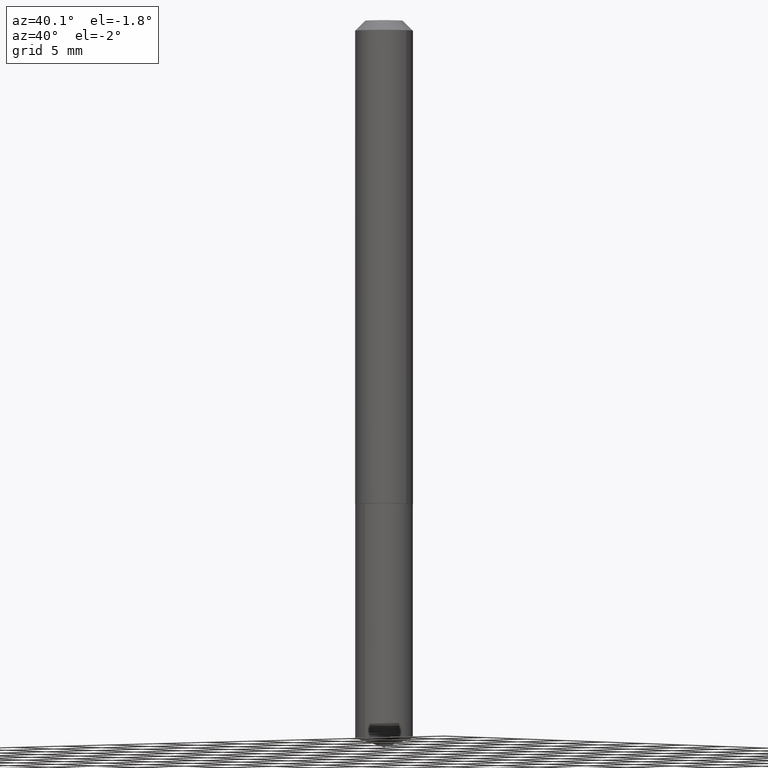
[diagram: clean part render]
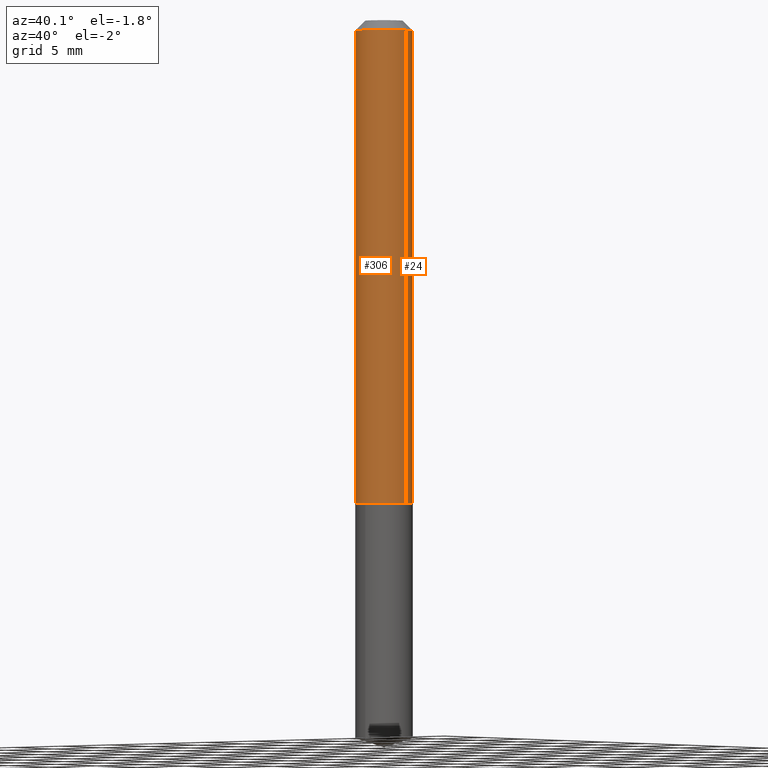
[diagram: same view with one multi-face feature highlighted, each face labeled with its STEP entity id]
A machine part, auxiliary view. The highlighted faces form ONE feature: a constant-radius fillet chain: 2 tangent blend faces with common blend radius 2.3 mm. The faces share edges in the B-rep.
Their STEP definitions:
[1] entity #306 (Cylinder):
#3 = AXIS2_PLACEMENT_3D ( 'NONE', #21, #150, #62 ) ;
#11 = VERTEX_POINT ( 'NONE', #83 ) ;
#20 = CARTESIAN_POINT ( 'NONE',  ( -0.09055000000000000548, -2.063287173673906046E-15, -0.03125000000000020123 ) ) ;
#21 = CARTESIAN_POINT ( 'NONE',  ( 0.000000000000000000, 0.000000000000000000, 0.000000000000000000 ) ) ;
#33 = VECTOR ( 'NONE', #266, 39.37007874015748143 ) ;
#47 = EDGE_LOOP ( 'NONE', ( #254, #278, #338, #140 ) ) ;
#52 = DIRECTION ( 'NONE',  ( -2.445468806185136597E-29, 3.491481338843145583E-15, 1.000000000000000000 ) ) ;
#54 = DIRECTION ( 'NONE',  ( 1.000000000000000000, -6.982962677686272233E-15, 0.000000000000000000 ) ) ;
#55 = LINE ( 'NONE', #184, #33 ) ;
#62 = DIRECTION ( 'NONE',  ( 1.000000000000000000, -6.982962677686265922E-15, 4.876176775795935232E-29 ) ) ;
#76 = VERTEX_POINT ( 'NONE', #386 ) ;
#80 = EDGE_CURVE ( 'NONE', #11, #76, #84, .T. ) ;
#83 = CARTESIAN_POINT ( 'NONE',  ( -0.09055000000000021365, -4.660862002739735424E-15, -1.519200000000000328 ) ) ;
#84 = CIRCLE ( 'NONE', #237, 0.09055000000000021365 ) ;
#92 = CARTESIAN_POINT ( 'NONE',  ( 7.642090019328600035E-31, -1.091087918388489897E-16, -0.03125000000000020123 ) ) ;
#103 = CIRCLE ( 'NONE', #105, 0.09055000000000000548 ) ;
#105 = AXIS2_PLACEMENT_3D ( 'NONE', #92, #52, #380 ) ;
#109 = VERTEX_POINT ( 'NONE', #20 ) ;
#112 = VECTOR ( 'NONE', #145, 39.37007874015748143 ) ;
#118 = CARTESIAN_POINT ( 'NONE',  ( -0.09055000000000011651, 6.433964472307715461E-16, -4.454095724225822824E-30 ) ) ;
#140 = ORIENTED_EDGE ( 'NONE', *, *, #367, .F. ) ;
#145 = DIRECTION ( 'NONE',  ( -2.445468806185136877E-29, 3.491481338843145188E-15, 1.000000000000000000 ) ) ;
#150 = DIRECTION ( 'NONE',  ( -2.445468806185136597E-29, 3.491481338843145583E-15, 1.000000000000000000 ) ) ;
#184 = CARTESIAN_POINT ( 'NONE',  ( 0.09055000000000011651, -6.323072704644921598E-16, 4.415378070483225012E-30 ) ) ;
#189 = CYLINDRICAL_SURFACE ( 'NONE', #3, 0.09055000000000011651 ) ;
#237 = AXIS2_PLACEMENT_3D ( 'NONE', #289, #319, #54 ) ;
#254 = ORIENTED_EDGE ( 'NONE', *, *, #331, .F. ) ;
#266 = DIRECTION ( 'NONE',  ( -2.445468806185136877E-29, 3.491481338843145188E-15, 1.000000000000000000 ) ) ;
#278 = ORIENTED_EDGE ( 'NONE', *, *, #80, .T. ) ;
#289 = CARTESIAN_POINT ( 'NONE',  ( 3.715156210356459952E-29, -5.304258449970507858E-15, -1.519200000000000328 ) ) ;
#306 = ADVANCED_FACE ( 'NONE', ( #360 ), #189, .T. ) ;
#319 = DIRECTION ( 'NONE',  ( -2.445468806185136597E-29, 3.491481338843145583E-15, 1.000000000000000000 ) ) ;
#324 = CARTESIAN_POINT ( 'NONE',  ( 0.09055000000000000548, -7.414160623033403730E-16, -0.03125000000000020123 ) ) ;
#331 = EDGE_CURVE ( 'NONE', #11, #109, #369, .T. ) ;
#335 = EDGE_CURVE ( 'NONE', #76, #375, #55, .T. ) ;
#338 = ORIENTED_EDGE ( 'NONE', *, *, #335, .T. ) ;
#360 = FACE_OUTER_BOUND ( 'NONE', #47, .T. ) ;
#367 = EDGE_CURVE ( 'NONE', #109, #375, #103, .T. ) ;
#369 = LINE ( 'NONE', #118, #112 ) ;
#375 = VERTEX_POINT ( 'NONE', #324 ) ;
#380 = DIRECTION ( 'NONE',  ( 1.000000000000000000, -6.982962677686266711E-15, 0.000000000000000000 ) ) ;
#386 = CARTESIAN_POINT ( 'NONE',  ( 0.09055000000000021365, -5.936565720435000905E-15, -1.519200000000000328 ) ) ;
[2] entity #24 (Cylinder):
#11 = VERTEX_POINT ( 'NONE', #83 ) ;
#18 = CARTESIAN_POINT ( 'NONE',  ( 3.715156210356459952E-29, -5.304258449970507858E-15, -1.519200000000000328 ) ) ;
#20 = CARTESIAN_POINT ( 'NONE',  ( -0.09055000000000000548, -2.063287173673906046E-15, -0.03125000000000020123 ) ) ;
#24 = ADVANCED_FACE ( 'NONE', ( #235 ), #56, .T. ) ;
#33 = VECTOR ( 'NONE', #266, 39.37007874015748143 ) ;
#55 = LINE ( 'NONE', #184, #33 ) ;
#56 = CYLINDRICAL_SURFACE ( 'NONE', #371, 0.09055000000000011651 ) ;
#76 = VERTEX_POINT ( 'NONE', #386 ) ;
#78 = ORIENTED_EDGE ( 'NONE', *, *, #335, .F. ) ;
#81 = ORIENTED_EDGE ( 'NONE', *, *, #276, .F. ) ;
#83 = CARTESIAN_POINT ( 'NONE',  ( -0.09055000000000021365, -4.660862002739735424E-15, -1.519200000000000328 ) ) ;
#109 = VERTEX_POINT ( 'NONE', #20 ) ;
#112 = VECTOR ( 'NONE', #145, 39.37007874015748143 ) ;
#117 = AXIS2_PLACEMENT_3D ( 'NONE', #18, #167, #290 ) ;
#118 = CARTESIAN_POINT ( 'NONE',  ( -0.09055000000000011651, 6.433964472307715461E-16, -4.454095724225822824E-30 ) ) ;
#123 = DIRECTION ( 'NONE',  ( 1.000000000000000000, -6.982962677686266711E-15, 0.000000000000000000 ) ) ;
#144 = ORIENTED_EDGE ( 'NONE', *, *, #288, .T. ) ;
#145 = DIRECTION ( 'NONE',  ( -2.445468806185136877E-29, 3.491481338843145188E-15, 1.000000000000000000 ) ) ;
#167 = DIRECTION ( 'NONE',  ( -2.445468806185136597E-29, 3.491481338843145583E-15, 1.000000000000000000 ) ) ;
#181 = CARTESIAN_POINT ( 'NONE',  ( 0.000000000000000000, 0.000000000000000000, 0.000000000000000000 ) ) ;
#184 = CARTESIAN_POINT ( 'NONE',  ( 0.09055000000000011651, -6.323072704644921598E-16, 4.415378070483225012E-30 ) ) ;
#197 = EDGE_LOOP ( 'NONE', ( #144, #223, #81, #78 ) ) ;
#223 = ORIENTED_EDGE ( 'NONE', *, *, #331, .T. ) ;
#234 = CARTESIAN_POINT ( 'NONE',  ( 7.642090019328600035E-31, -1.091087918388489897E-16, -0.03125000000000020123 ) ) ;
#235 = FACE_OUTER_BOUND ( 'NONE', #197, .T. ) ;
#256 = DIRECTION ( 'NONE',  ( -2.445468806185136597E-29, 3.491481338843145583E-15, 1.000000000000000000 ) ) ;
#266 = DIRECTION ( 'NONE',  ( -2.445468806185136877E-29, 3.491481338843145188E-15, 1.000000000000000000 ) ) ;
#269 = AXIS2_PLACEMENT_3D ( 'NONE', #234, #256, #123 ) ;
#276 = EDGE_CURVE ( 'NONE', #375, #109, #388, .T. ) ;
#277 = CIRCLE ( 'NONE', #117, 0.09055000000000021365 ) ;
#288 = EDGE_CURVE ( 'NONE', #76, #11, #277, .T. ) ;
#290 = DIRECTION ( 'NONE',  ( 1.000000000000000000, -6.982962677686272233E-15, 0.000000000000000000 ) ) ;
#295 = DIRECTION ( 'NONE',  ( 1.000000000000000000, -6.982962677686265922E-15, 4.876176775795935232E-29 ) ) ;
#324 = CARTESIAN_POINT ( 'NONE',  ( 0.09055000000000000548, -7.414160623033403730E-16, -0.03125000000000020123 ) ) ;
#331 = EDGE_CURVE ( 'NONE', #11, #109, #369, .T. ) ;
#335 = EDGE_CURVE ( 'NONE', #76, #375, #55, .T. ) ;
#369 = LINE ( 'NONE', #118, #112 ) ;
#371 = AXIS2_PLACEMENT_3D ( 'NONE', #181, #379, #295 ) ;
#375 = VERTEX_POINT ( 'NONE', #324 ) ;
#379 = DIRECTION ( 'NONE',  ( -2.445468806185136597E-29, 3.491481338843145583E-15, 1.000000000000000000 ) ) ;
#386 = CARTESIAN_POINT ( 'NONE',  ( 0.09055000000000021365, -5.936565720435000905E-15, -1.519200000000000328 ) ) ;
#388 = CIRCLE ( 'NONE', #269, 0.09055000000000000548 ) ;